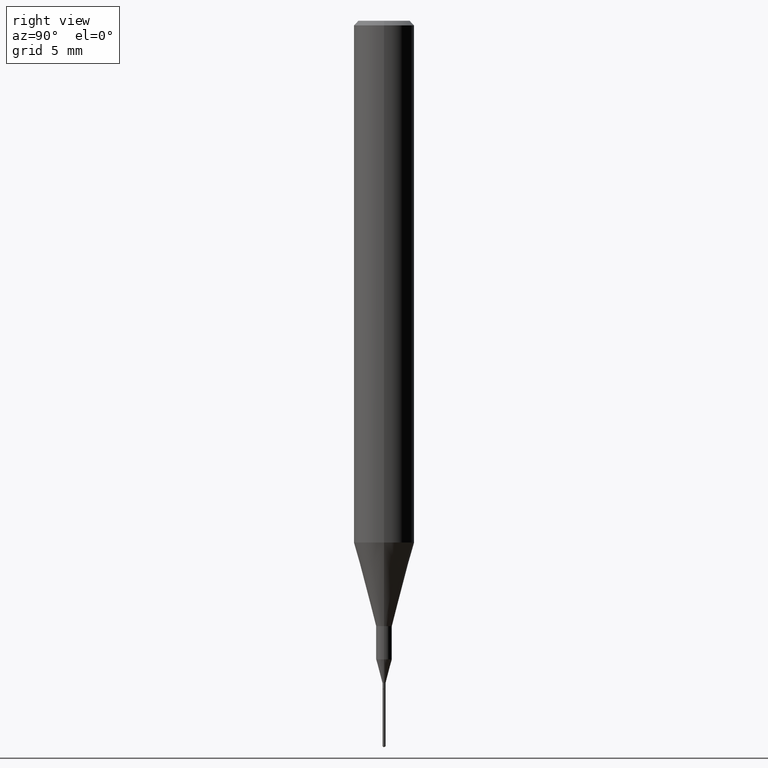
[diagram: clean part render]
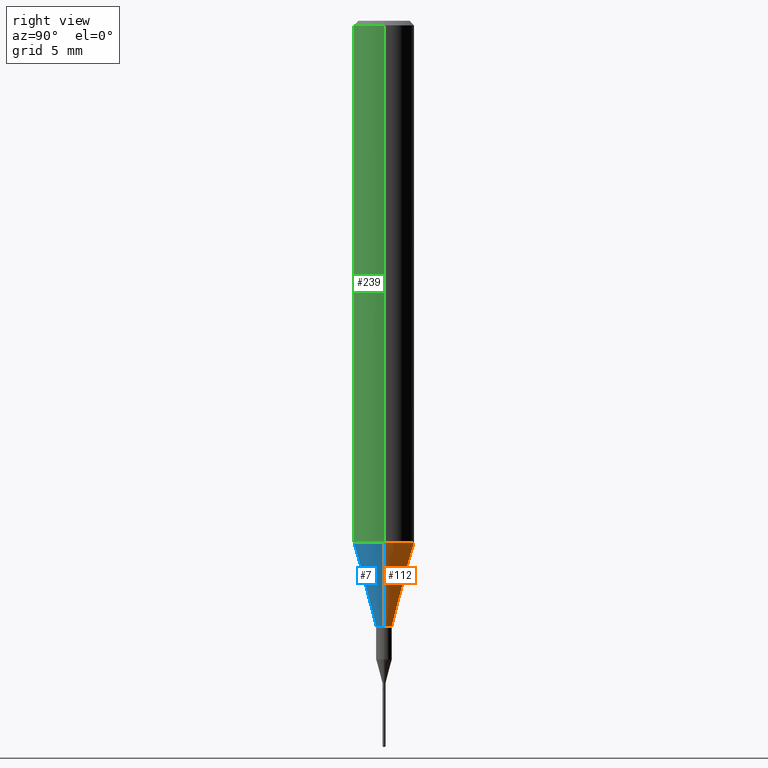
[diagram: same view with three faces highlighted in distinct colors, each labeled with its STEP entity id]
A machine part, right view with three faces highlighted in distinct colors.
Their STEP definitions:

[orange] entity #112 — the highlighted conical surface has half-angle 15 deg.
#21 = CONICAL_SURFACE ( 'NONE', #342, 0.06250000000000012490, 0.2617993877991501295 ) ;
#25 = DIRECTION ( 'NONE',  ( -2.445468806185136597E-29, 3.491481338843145583E-15, 1.000000000000000000 ) ) ;
#43 = DIRECTION ( 'NONE',  ( -2.445468806185136597E-29, 3.491481338843145583E-15, 1.000000000000000000 ) ) ;
#50 = CARTESIAN_POINT ( 'NONE',  ( 2.634730117954813298E-29, -3.761696332605275695E-15, -1.077392650149939346 ) ) ;
#56 = EDGE_CURVE ( 'NONE', #170, #387, #492, .T. ) ;
#67 = CARTESIAN_POINT ( 'NONE',  ( -0.06250000000000012490, -3.317607122755211895E-15, -1.077392650149939346 ) ) ;
#76 = AXIS2_PLACEMENT_3D ( 'NONE', #545, #43, #397 ) ;
#77 = VECTOR ( 'NONE', #396, 39.37007874015747433 ) ;
#92 = DIRECTION ( 'NONE',  ( 1.000000000000000000, -6.982962677686264344E-15, 0.000000000000000000 ) ) ;
#112 = ADVANCED_FACE ( 'NONE', ( #497 ), #21, .T. ) ;
#116 = VECTOR ( 'NONE', #481, 39.37007874015747433 ) ;
#131 = CARTESIAN_POINT ( 'NONE',  ( -0.06250000000000012490, -3.317607122755211895E-15, -1.077392650149939346 ) ) ;
#167 = ORIENTED_EDGE ( 'NONE', *, *, #577, .T. ) ;
#170 = VERTEX_POINT ( 'NONE', #548 ) ;
#172 = ORIENTED_EDGE ( 'NONE', *, *, #267, .F. ) ;
#259 = CARTESIAN_POINT ( 'NONE',  ( 0.06250000000000012490, -4.198131499960668153E-15, -1.077392650149939346 ) ) ;
#267 = EDGE_CURVE ( 'NONE', #295, #341, #573, .T. ) ;
#279 = LINE ( 'NONE', #131, #116 ) ;
#293 = CARTESIAN_POINT ( 'NONE',  ( 0.06250000000000012490, -4.198131499960668153E-15, -1.077392650149939346 ) ) ;
#295 = VERTEX_POINT ( 'NONE', #293 ) ;
#309 = AXIS2_PLACEMENT_3D ( 'NONE', #411, #25, #325 ) ;
#322 = CARTESIAN_POINT ( 'NONE',  ( -0.01624999999999999709, -4.368489406918928826E-15, -1.250000000000000000 ) ) ;
#325 = DIRECTION ( 'NONE',  ( 1.000000000000000000, -6.982962677686264344E-15, 0.000000000000000000 ) ) ;
#341 = VERTEX_POINT ( 'NONE', #67 ) ;
#342 = AXIS2_PLACEMENT_3D ( 'NONE', #50, #355, #92 ) ;
#347 = EDGE_LOOP ( 'NONE', ( #580, #167, #172, #417 ) ) ;
#355 = DIRECTION ( 'NONE',  ( -2.445468806185136597E-29, 3.491481338843145583E-15, 1.000000000000000000 ) ) ;
#385 = LINE ( 'NONE', #259, #77 ) ;
#387 = VERTEX_POINT ( 'NONE', #322 ) ;
#396 = DIRECTION ( 'NONE',  ( 0.2588190451025214611, 1.565188264969621573E-15, 0.9659258262890682012 ) ) ;
#397 = DIRECTION ( 'NONE',  ( 1.000000000000000000, -6.982962677686288799E-15, 0.000000000000000000 ) ) ;
#411 = CARTESIAN_POINT ( 'NONE',  ( 2.634730117954813298E-29, -3.761696332605275695E-15, -1.077392650149939346 ) ) ;
#417 = ORIENTED_EDGE ( 'NONE', *, *, #467, .F. ) ;
#467 = EDGE_CURVE ( 'NONE', #170, #295, #385, .T. ) ;
#481 = DIRECTION ( 'NONE',  ( -0.2588190451025214611, 5.211531920934551042E-15, 0.9659258262890682012 ) ) ;
#492 = CIRCLE ( 'NONE', #76, 0.01624999999999999709 ) ;
#497 = FACE_OUTER_BOUND ( 'NONE', #347, .T. ) ;
#545 = CARTESIAN_POINT ( 'NONE',  ( 3.056836007731421306E-29, -4.364351673553932471E-15, -1.250000000000000000 ) ) ;
#548 = CARTESIAN_POINT ( 'NONE',  ( 0.01624999999999999709, -4.477824817066334148E-15, -1.250000000000000000 ) ) ;
#573 = CIRCLE ( 'NONE', #309, 0.06250000000000012490 ) ;
#577 = EDGE_CURVE ( 'NONE', #387, #341, #279, .T. ) ;
#580 = ORIENTED_EDGE ( 'NONE', *, *, #56, .T. ) ;

[blue] entity #7 — the highlighted conical surface has half-angle 15 deg.
#7 = ADVANCED_FACE ( 'NONE', ( #529 ), #318, .T. ) ;
#32 = ORIENTED_EDGE ( 'NONE', *, *, #219, .F. ) ;
#67 = CARTESIAN_POINT ( 'NONE',  ( -0.06250000000000012490, -3.317607122755211895E-15, -1.077392650149939346 ) ) ;
#72 = ORIENTED_EDGE ( 'NONE', *, *, #467, .T. ) ;
#77 = VECTOR ( 'NONE', #396, 39.37007874015747433 ) ;
#82 = DIRECTION ( 'NONE',  ( -2.445468806185136597E-29, 3.491481338843145583E-15, 1.000000000000000000 ) ) ;
#116 = VECTOR ( 'NONE', #481, 39.37007874015747433 ) ;
#124 = DIRECTION ( 'NONE',  ( 1.000000000000000000, -6.982962677686264344E-15, 0.000000000000000000 ) ) ;
#131 = CARTESIAN_POINT ( 'NONE',  ( -0.06250000000000012490, -3.317607122755211895E-15, -1.077392650149939346 ) ) ;
#138 = DIRECTION ( 'NONE',  ( 1.000000000000000000, -6.982962677686288799E-15, 0.000000000000000000 ) ) ;
#170 = VERTEX_POINT ( 'NONE', #548 ) ;
#202 = DIRECTION ( 'NONE',  ( 1.000000000000000000, -6.982962677686264344E-15, 0.000000000000000000 ) ) ;
#203 = EDGE_LOOP ( 'NONE', ( #480, #572, #72, #32 ) ) ;
#214 = CIRCLE ( 'NONE', #251, 0.06250000000000012490 ) ;
#219 = EDGE_CURVE ( 'NONE', #341, #295, #214, .T. ) ;
#249 = CARTESIAN_POINT ( 'NONE',  ( 2.634730117954813298E-29, -3.761696332605275695E-15, -1.077392650149939346 ) ) ;
#251 = AXIS2_PLACEMENT_3D ( 'NONE', #509, #423, #202 ) ;
#259 = CARTESIAN_POINT ( 'NONE',  ( 0.06250000000000012490, -4.198131499960668153E-15, -1.077392650149939346 ) ) ;
#279 = LINE ( 'NONE', #131, #116 ) ;
#293 = CARTESIAN_POINT ( 'NONE',  ( 0.06250000000000012490, -4.198131499960668153E-15, -1.077392650149939346 ) ) ;
#295 = VERTEX_POINT ( 'NONE', #293 ) ;
#318 = CONICAL_SURFACE ( 'NONE', #542, 0.06250000000000012490, 0.2617993877991501295 ) ;
#322 = CARTESIAN_POINT ( 'NONE',  ( -0.01624999999999999709, -4.368489406918928826E-15, -1.250000000000000000 ) ) ;
#341 = VERTEX_POINT ( 'NONE', #67 ) ;
#350 = CARTESIAN_POINT ( 'NONE',  ( 3.056836007731421306E-29, -4.364351673553932471E-15, -1.250000000000000000 ) ) ;
#373 = CIRCLE ( 'NONE', #532, 0.01624999999999999709 ) ;
#385 = LINE ( 'NONE', #259, #77 ) ;
#387 = VERTEX_POINT ( 'NONE', #322 ) ;
#396 = DIRECTION ( 'NONE',  ( 0.2588190451025214611, 1.565188264969621573E-15, 0.9659258262890682012 ) ) ;
#423 = DIRECTION ( 'NONE',  ( -2.445468806185136597E-29, 3.491481338843145583E-15, 1.000000000000000000 ) ) ;
#467 = EDGE_CURVE ( 'NONE', #170, #295, #385, .T. ) ;
#480 = ORIENTED_EDGE ( 'NONE', *, *, #577, .F. ) ;
#481 = DIRECTION ( 'NONE',  ( -0.2588190451025214611, 5.211531920934551042E-15, 0.9659258262890682012 ) ) ;
#504 = EDGE_CURVE ( 'NONE', #387, #170, #373, .T. ) ;
#509 = CARTESIAN_POINT ( 'NONE',  ( 2.634730117954813298E-29, -3.761696332605275695E-15, -1.077392650149939346 ) ) ;
#529 = FACE_OUTER_BOUND ( 'NONE', #203, .T. ) ;
#532 = AXIS2_PLACEMENT_3D ( 'NONE', #350, #544, #138 ) ;
#542 = AXIS2_PLACEMENT_3D ( 'NONE', #249, #82, #124 ) ;
#544 = DIRECTION ( 'NONE',  ( -2.445468806185136597E-29, 3.491481338843145583E-15, 1.000000000000000000 ) ) ;
#548 = CARTESIAN_POINT ( 'NONE',  ( 0.01624999999999999709, -4.477824817066334148E-15, -1.250000000000000000 ) ) ;
#572 = ORIENTED_EDGE ( 'NONE', *, *, #504, .T. ) ;
#577 = EDGE_CURVE ( 'NONE', #387, #341, #279, .T. ) ;

[green] entity #239 — the highlighted cylindrical surface (edge-blend (fillet) strip) has radius 1.5875 mm, axis along (-0, 0, 1).
#18 = CYLINDRICAL_SURFACE ( 'NONE', #38, 0.06250000000000006939 ) ;
#38 = AXIS2_PLACEMENT_3D ( 'NONE', #109, #284, #377 ) ;
#39 = VECTOR ( 'NONE', #324, 39.37007874015748143 ) ;
#42 = EDGE_CURVE ( 'NONE', #295, #378, #130, .T. ) ;
#67 = CARTESIAN_POINT ( 'NONE',  ( -0.06250000000000012490, -3.317607122755211895E-15, -1.077392650149939346 ) ) ;
#109 = CARTESIAN_POINT ( 'NONE',  ( 0.000000000000000000, 0.000000000000000000, 0.000000000000000000 ) ) ;
#130 = LINE ( 'NONE', #307, #381 ) ;
#139 = DIRECTION ( 'NONE',  ( -2.445468806185136597E-29, 3.491481338843145583E-15, 1.000000000000000000 ) ) ;
#142 = DIRECTION ( 'NONE',  ( 1.000000000000000000, -6.982962677686266711E-15, 0.000000000000000000 ) ) ;
#148 = EDGE_CURVE ( 'NONE', #254, #378, #484, .T. ) ;
#149 = CARTESIAN_POINT ( 'NONE',  ( -0.06250000000000006939, 4.440892098500631092E-16, -3.074334431409319267E-30 ) ) ;
#179 = DIRECTION ( 'NONE',  ( -2.445468806185136877E-29, 3.491481338843145188E-15, 1.000000000000000000 ) ) ;
#202 = DIRECTION ( 'NONE',  ( 1.000000000000000000, -6.982962677686264344E-15, 0.000000000000000000 ) ) ;
#211 = ORIENTED_EDGE ( 'NONE', *, *, #219, .T. ) ;
#214 = CIRCLE ( 'NONE', #251, 0.06250000000000012490 ) ;
#219 = EDGE_CURVE ( 'NONE', #341, #295, #214, .T. ) ;
#239 = ADVANCED_FACE ( 'NONE', ( #241 ), #18, .T. ) ;
#241 = FACE_OUTER_BOUND ( 'NONE', #296, .T. ) ;
#251 = AXIS2_PLACEMENT_3D ( 'NONE', #509, #423, #202 ) ;
#254 = VERTEX_POINT ( 'NONE', #333 ) ;
#284 = DIRECTION ( 'NONE',  ( -2.445468806185136597E-29, 3.491481338843145583E-15, 1.000000000000000000 ) ) ;
#293 = CARTESIAN_POINT ( 'NONE',  ( 0.06250000000000012490, -4.198131499960668153E-15, -1.077392650149939346 ) ) ;
#295 = VERTEX_POINT ( 'NONE', #293 ) ;
#296 = EDGE_LOOP ( 'NONE', ( #540, #211, #470, #575 ) ) ;
#307 = CARTESIAN_POINT ( 'NONE',  ( 0.06250000000000006939, -4.364351673553921624E-16, 3.047610484872463374E-30 ) ) ;
#324 = DIRECTION ( 'NONE',  ( -2.445468806185136877E-29, 3.491481338843145188E-15, 1.000000000000000000 ) ) ;
#333 = CARTESIAN_POINT ( 'NONE',  ( -0.06250000000000000000, -1.453125275228401137E-15, -0.009375000000000060368 ) ) ;
#341 = VERTEX_POINT ( 'NONE', #67 ) ;
#377 = DIRECTION ( 'NONE',  ( 1.000000000000000000, -6.982962677686266711E-15, 4.876176775795935793E-29 ) ) ;
#378 = VERTEX_POINT ( 'NONE', #554 ) ;
#381 = VECTOR ( 'NONE', #179, 39.37007874015748143 ) ;
#423 = DIRECTION ( 'NONE',  ( -2.445468806185136597E-29, 3.491481338843145583E-15, 1.000000000000000000 ) ) ;
#432 = AXIS2_PLACEMENT_3D ( 'NONE', #546, #139, #142 ) ;
#470 = ORIENTED_EDGE ( 'NONE', *, *, #42, .T. ) ;
#484 = CIRCLE ( 'NONE', #432, 0.06250000000000000000 ) ;
#506 = LINE ( 'NONE', #149, #39 ) ;
#509 = CARTESIAN_POINT ( 'NONE',  ( 2.634730117954813298E-29, -3.761696332605275695E-15, -1.077392650149939346 ) ) ;
#540 = ORIENTED_EDGE ( 'NONE', *, *, #571, .F. ) ;
#546 = CARTESIAN_POINT ( 'NONE',  ( 2.292627005798580623E-31, -3.273263755165470184E-17, -0.009375000000000060368 ) ) ;
#554 = CARTESIAN_POINT ( 'NONE',  ( 0.06250000000000000000, -4.691678049070463404E-16, -0.009375000000000060368 ) ) ;
#571 = EDGE_CURVE ( 'NONE', #341, #254, #506, .T. ) ;
#575 = ORIENTED_EDGE ( 'NONE', *, *, #148, .F. ) ;